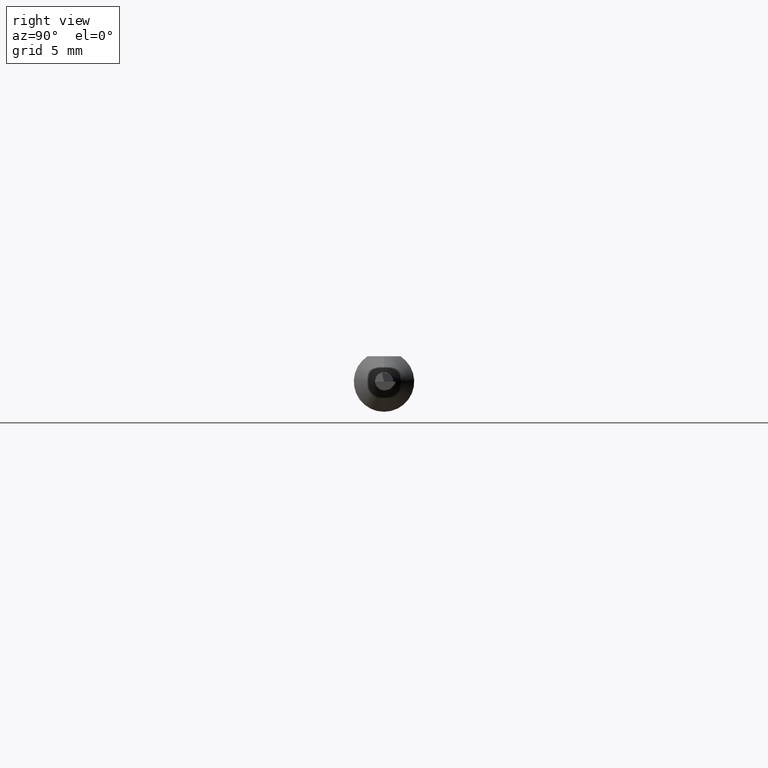
[diagram: clean part render]
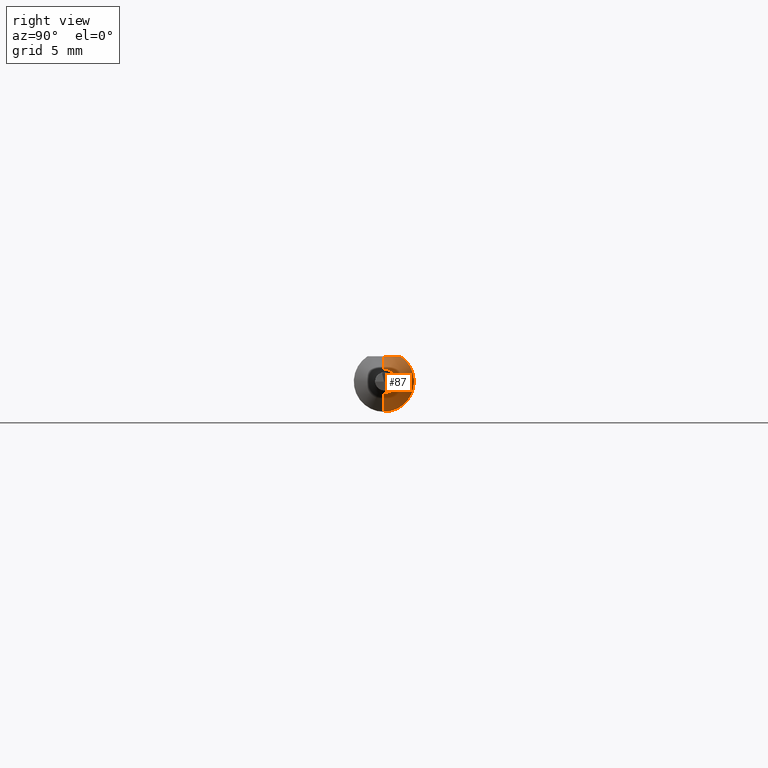
[diagram: same view with one face highlighted and labeled with its STEP entity id]
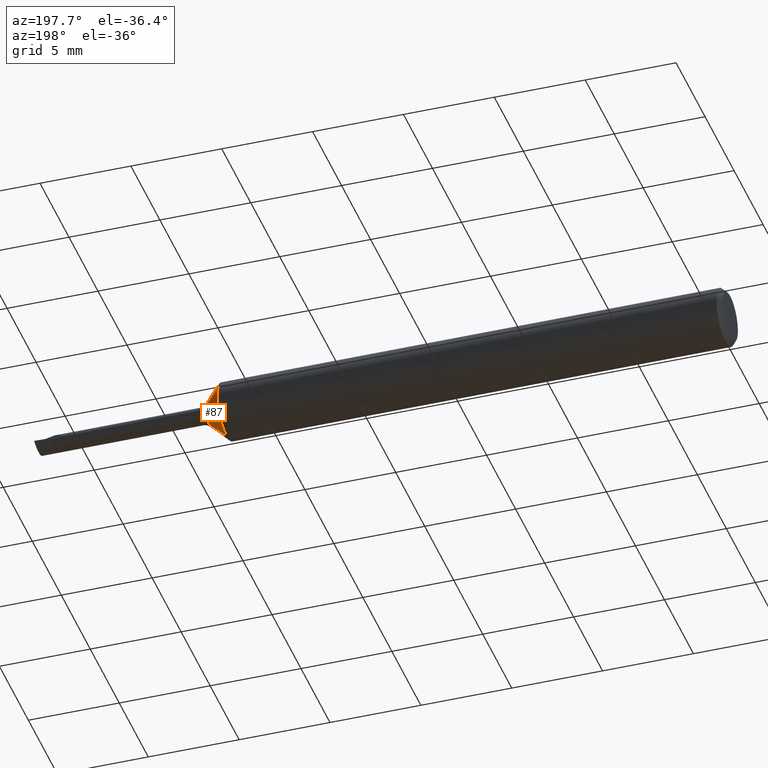
[diagram: same view with one face highlighted and labeled with its STEP entity id]
A machine part, right view. The second image highlights one B-rep face of the part: STEP entity #87.
A second angle (auxiliary view) of the same face is appended — the face is thin or edge-on in the first view.
In plain terms, the highlighted conical surface has half-angle 45 deg.
Its self-contained STEP definition (entity closure, byte-faithful):
#8 = ORIENTED_EDGE ( 'NONE', *, *, #378, .F. ) ;
#12 = VERTEX_POINT ( 'NONE', #15 ) ;
#15 = CARTESIAN_POINT ( 'NONE',  ( 1.091150000000000286, 0.03386738844375220686, 0.05235000000000000070 ) ) ;
#22 = FACE_OUTER_BOUND ( 'NONE', #591, .T. ) ;
#24 = LINE ( 'NONE', #328, #480 ) ;
#26 = CARTESIAN_POINT ( 'NONE',  ( 1.091150000000000286, 0.03386738844375220686, 0.05235000000000000070 ) ) ;
#34 = ORIENTED_EDGE ( 'NONE', *, *, #622, .T. ) ;
#43 = B_SPLINE_CURVE_WITH_KNOTS ( 'NONE', 3,
 ( #26, #625, #400, #639, #486, #296 ),
 .UNSPECIFIED., .F., .F.,
 ( 4, 2, 4 ),
 ( 0.002018861167849228706, 0.002467762199066008549, 0.002916663230282787959 ),
 .UNSPECIFIED. ) ;
#49 = VECTOR ( 'NONE', #182, 39.37007874015748143 ) ;
#79 = AXIS2_PLACEMENT_3D ( 'NONE', #619, #616, #467 ) ;
#84 = VERTEX_POINT ( 'NONE', #219 ) ;
#87 = ADVANCED_FACE ( 'NONE', ( #22 ), #189, .T. ) ;
#95 = CARTESIAN_POINT ( 'NONE',  ( 1.127677669529663751, 0.000000000000000000, 0.000000000000000000 ) ) ;
#147 = VERTEX_POINT ( 'NONE', #424 ) ;
#182 = DIRECTION ( 'NONE',  ( -0.7071067811865477948, 0.000000000000000000, 0.7071067811865472397 ) ) ;
#189 = CONICAL_SURFACE ( 'NONE', #558, 0.02582233047033644438, 0.7853981633974479459 ) ;
#212 = EDGE_CURVE ( 'NONE', #588, #147, #565, .T. ) ;
#219 = CARTESIAN_POINT ( 'NONE',  ( 1.101150000000000295, -1.477730522838633192E-21, 0.05235000000000001458 ) ) ;
#224 = LINE ( 'NONE', #415, #49 ) ;
#232 = CARTESIAN_POINT ( 'NONE',  ( 1.127677669529663751, 0.000000000000000000, 0.000000000000000000 ) ) ;
#263 = AXIS2_PLACEMENT_3D ( 'NONE', #95, #301, #556 ) ;
#277 = CARTESIAN_POINT ( 'NONE',  ( 1.091150000000000286, 7.635672792683746671E-18, -0.06235000000000000264 ) ) ;
#284 = DIRECTION ( 'NONE',  ( -0.7071067811865477948, 8.659560562354929160E-17, -0.7071067811865472397 ) ) ;
#296 = CARTESIAN_POINT ( 'NONE',  ( 1.101150000000000295, -1.477730522838633192E-21, 0.05235000000000001458 ) ) ;
#301 = DIRECTION ( 'NONE',  ( -1.000000000000000000, -0.000000000000000000, -0.000000000000000000 ) ) ;
#322 = DIRECTION ( 'NONE',  ( -1.000000000000000000, -0.000000000000000000, -0.000000000000000000 ) ) ;
#327 = ORIENTED_EDGE ( 'NONE', *, *, #593, .T. ) ;
#328 = CARTESIAN_POINT ( 'NONE',  ( 1.127677669529663751, 3.162323435702269328E-18, -0.02582233047033644438 ) ) ;
#359 = CIRCLE ( 'NONE', #79, 0.06235000000000000264 ) ;
#378 = EDGE_CURVE ( 'NONE', #12, #539, #359, .T. ) ;
#400 = CARTESIAN_POINT ( 'NONE',  ( 1.096488788636946765, 0.02320328458619742504, 0.05235000000000002152 ) ) ;
#415 = CARTESIAN_POINT ( 'NONE',  ( 1.127677669529663751, 0.000000000000000000, 0.02582233047033644438 ) ) ;
#424 = CARTESIAN_POINT ( 'NONE',  ( 1.127677669529663751, 3.162323435702262010E-18, -0.02582233047033638887 ) ) ;
#467 = DIRECTION ( 'NONE',  ( 0.000000000000000000, 0.000000000000000000, 1.000000000000000000 ) ) ;
#477 = EDGE_CURVE ( 'NONE', #588, #84, #224, .T. ) ;
#480 = VECTOR ( 'NONE', #284, 39.37007874015748143 ) ;
#486 = CARTESIAN_POINT ( 'NONE',  ( 1.101150000000000295, 0.005920815533601004807, 0.05235000000000002152 ) ) ;
#524 = DIRECTION ( 'NONE',  ( 0.000000000000000000, 0.000000000000000000, 1.000000000000000000 ) ) ;
#535 = ORIENTED_EDGE ( 'NONE', *, *, #212, .T. ) ;
#539 = VERTEX_POINT ( 'NONE', #277 ) ;
#556 = DIRECTION ( 'NONE',  ( 0.000000000000000000, 0.000000000000000000, 1.000000000000000000 ) ) ;
#558 = AXIS2_PLACEMENT_3D ( 'NONE', #232, #322, #524 ) ;
#565 = CIRCLE ( 'NONE', #263, 0.02582233047033644438 ) ;
#588 = VERTEX_POINT ( 'NONE', #629 ) ;
#591 = EDGE_LOOP ( 'NONE', ( #535, #327, #8, #34, #645 ) ) ;
#593 = EDGE_CURVE ( 'NONE', #147, #539, #24, .T. ) ;
#616 = DIRECTION ( 'NONE',  ( -1.000000000000000000, -0.000000000000000000, -0.000000000000000000 ) ) ;
#619 = CARTESIAN_POINT ( 'NONE',  ( 1.091150000000000286, 0.000000000000000000, 0.000000000000000000 ) ) ;
#622 = EDGE_CURVE ( 'NONE', #12, #84, #43, .T. ) ;
#625 = CARTESIAN_POINT ( 'NONE',  ( 1.093992034642578659, 0.02863519109676615146, 0.05235000000000002152 ) ) ;
#629 = CARTESIAN_POINT ( 'NONE',  ( 1.127677669529663751, 0.000000000000000000, 0.02582233047033638887 ) ) ;
#639 = CARTESIAN_POINT ( 'NONE',  ( 1.100078615661968851, 0.01191463382135335598, 0.05235000000000001458 ) ) ;
#645 = ORIENTED_EDGE ( 'NONE', *, *, #477, .F. ) ;